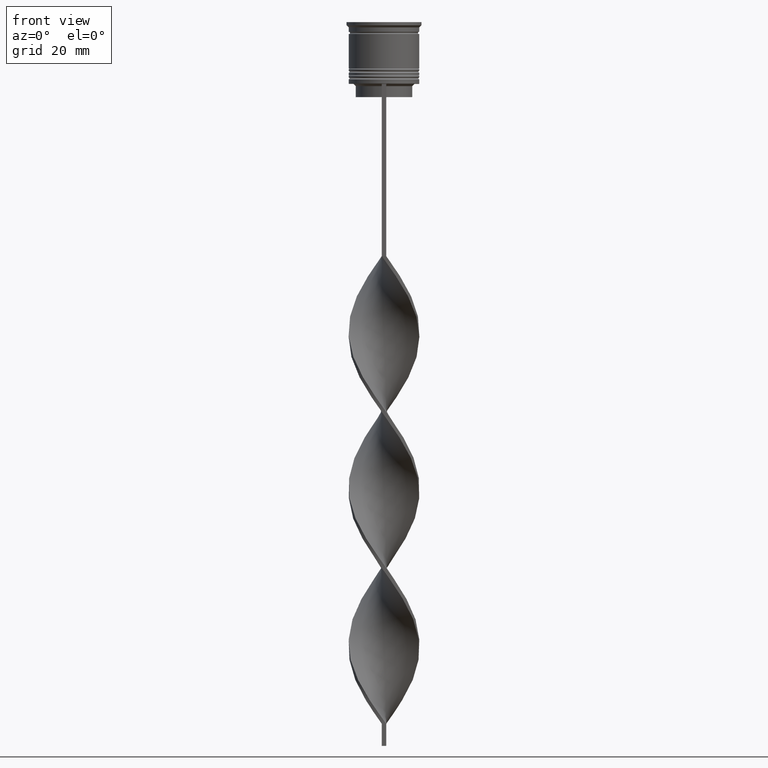
[diagram: clean part render]
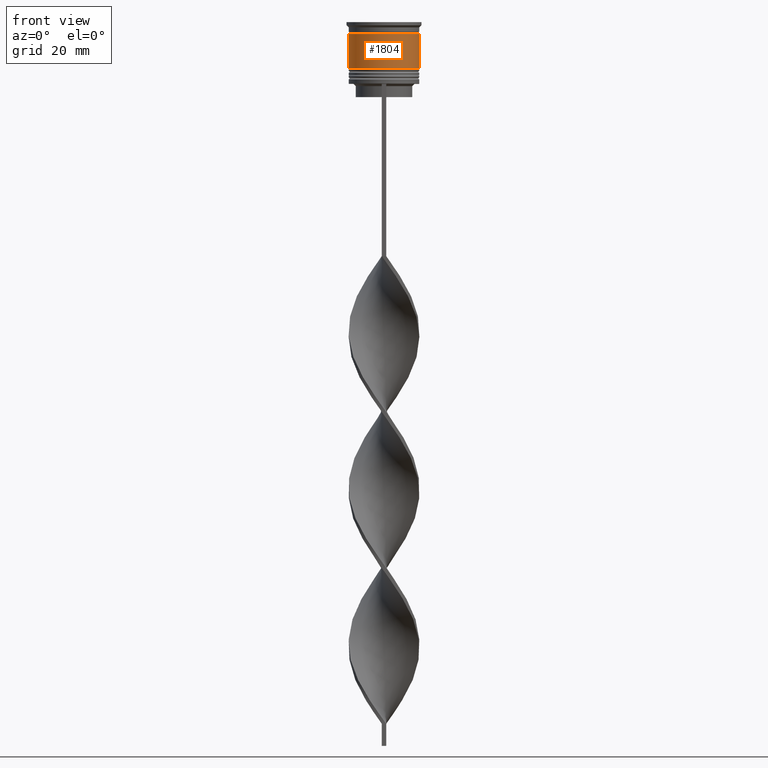
[diagram: same view with one face highlighted and labeled with its STEP entity id]
A machine part, front view. The second image highlights one B-rep face of the part: STEP entity #1804.
In plain terms, the highlighted cylindrical surface (edge-blend (fillet) strip) has radius 8 mm, axis along (-0, -0, 1).
Its self-contained STEP definition (entity closure, byte-faithful):
#34 = CARTESIAN_POINT ( 'NONE',  ( 8.000000000000001776, 0.000000000000000000, -10.50000000000000000 ) ) ;
#77 = CIRCLE ( 'NONE', #1709, 7.999999999999998224 ) ;
#189 = EDGE_LOOP ( 'NONE', ( #1389, #3291, #3367, #3449 ) ) ;
#428 = EDGE_CURVE ( 'NONE', #2478, #2614, #77, .T. ) ;
#496 = CARTESIAN_POINT ( 'NONE',  ( 0.000000000000000000, 0.000000000000000000, 0.000000000000000000 ) ) ;
#532 = CARTESIAN_POINT ( 'NONE',  ( 0.000000000000000000, 0.000000000000000000, -10.50000000000000000 ) ) ;
#671 = VECTOR ( 'NONE', #1001, 1000.000000000000000 ) ;
#968 = DIRECTION ( 'NONE',  ( -0.000000000000000000, -0.000000000000000000, 1.000000000000000000 ) ) ;
#973 = DIRECTION ( 'NONE',  ( -0.000000000000000000, -0.000000000000000000, 1.000000000000000000 ) ) ;
#980 = VERTEX_POINT ( 'NONE', #34 ) ;
#992 = EDGE_CURVE ( 'NONE', #1857, #2478, #2959, .T. ) ;
#995 = VECTOR ( 'NONE', #968, 1000.000000000000000 ) ;
#1001 = DIRECTION ( 'NONE',  ( -0.000000000000000000, -0.000000000000000000, 1.000000000000000000 ) ) ;
#1126 = DIRECTION ( 'NONE',  ( -0.000000000000000000, -0.000000000000000000, 1.000000000000000000 ) ) ;
#1269 = LINE ( 'NONE', #1535, #995 ) ;
#1299 = CARTESIAN_POINT ( 'NONE',  ( -8.000000000000000000, 9.797174393178825657E-16, 0.000000000000000000 ) ) ;
#1335 = AXIS2_PLACEMENT_3D ( 'NONE', #496, #2183, #1964 ) ;
#1389 = ORIENTED_EDGE ( 'NONE', *, *, #992, .F. ) ;
#1535 = CARTESIAN_POINT ( 'NONE',  ( 8.000000000000000000, 0.000000000000000000, 0.000000000000000000 ) ) ;
#1541 = CARTESIAN_POINT ( 'NONE',  ( 0.000000000000000000, 0.000000000000000000, -2.700000000000001510 ) ) ;
#1696 = DIRECTION ( 'NONE',  ( 1.000000000000000000, 0.000000000000000000, 0.000000000000000000 ) ) ;
#1709 = AXIS2_PLACEMENT_3D ( 'NONE', #1541, #973, #3302 ) ;
#1804 = ADVANCED_FACE ( 'NONE', ( #3336 ), #3102, .T. ) ;
#1857 = VERTEX_POINT ( 'NONE', #1927 ) ;
#1927 = CARTESIAN_POINT ( 'NONE',  ( -8.000000000000001776, 9.797174393178827630E-16, -10.50000000000000000 ) ) ;
#1964 = DIRECTION ( 'NONE',  ( 1.000000000000000000, 0.000000000000000000, 0.000000000000000000 ) ) ;
#2144 = AXIS2_PLACEMENT_3D ( 'NONE', #532, #1126, #1696 ) ;
#2183 = DIRECTION ( 'NONE',  ( -0.000000000000000000, -0.000000000000000000, 1.000000000000000000 ) ) ;
#2266 = CARTESIAN_POINT ( 'NONE',  ( -7.999999999999998224, 9.797174393178823685E-16, -2.700000000000001510 ) ) ;
#2478 = VERTEX_POINT ( 'NONE', #2266 ) ;
#2614 = VERTEX_POINT ( 'NONE', #3142 ) ;
#2747 = CIRCLE ( 'NONE', #2144, 8.000000000000001776 ) ;
#2959 = LINE ( 'NONE', #1299, #671 ) ;
#3102 = CYLINDRICAL_SURFACE ( 'NONE', #1335, 8.000000000000000000 ) ;
#3142 = CARTESIAN_POINT ( 'NONE',  ( 7.999999999999998224, 0.000000000000000000, -2.700000000000001510 ) ) ;
#3148 = EDGE_CURVE ( 'NONE', #1857, #980, #2747, .T. ) ;
#3221 = EDGE_CURVE ( 'NONE', #980, #2614, #1269, .T. ) ;
#3291 = ORIENTED_EDGE ( 'NONE', *, *, #3148, .T. ) ;
#3302 = DIRECTION ( 'NONE',  ( 1.000000000000000000, 0.000000000000000000, 0.000000000000000000 ) ) ;
#3336 = FACE_OUTER_BOUND ( 'NONE', #189, .T. ) ;
#3367 = ORIENTED_EDGE ( 'NONE', *, *, #3221, .T. ) ;
#3449 = ORIENTED_EDGE ( 'NONE', *, *, #428, .F. ) ;